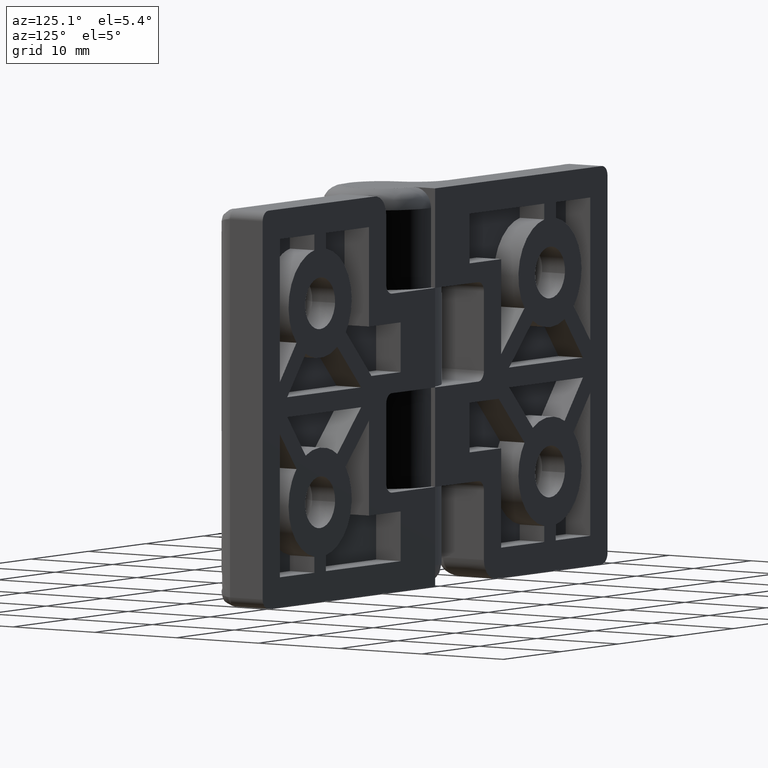
[diagram: clean part render]
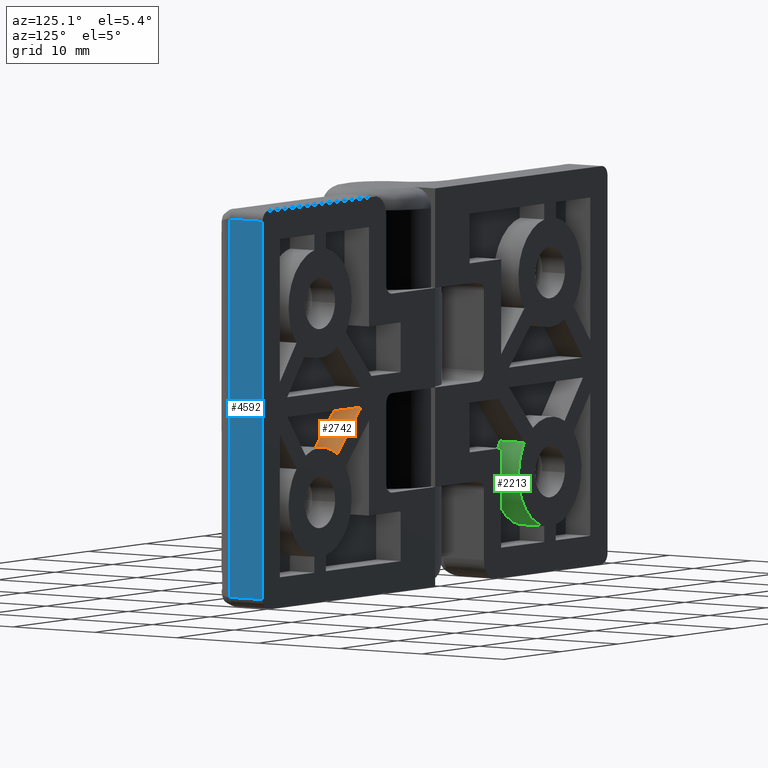
[diagram: same view with three faces highlighted in distinct colors, each labeled with its STEP entity id]
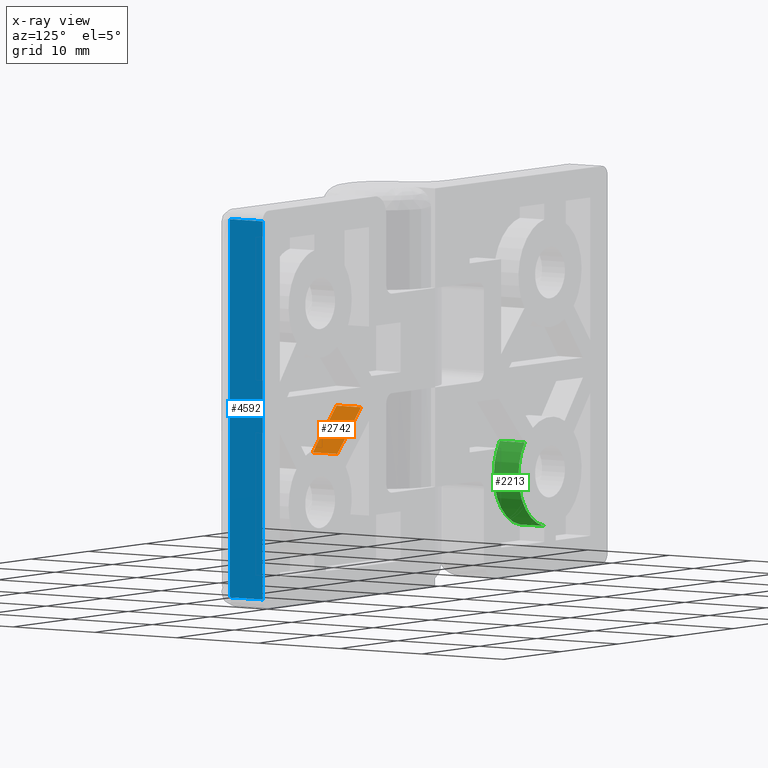
[diagram: x-ray of the same camera — body ghosted, the three highlighted faces saturated]
A machine part, auxiliary view with three faces highlighted in distinct colors.
The next image is the same camera in x-ray (body ghosted, the three faces saturated) — at least one of them is partly hidden behind the body in this view.
Their STEP definitions:

[orange] entity #2742 — the highlighted face is a freeform B-spline surface patch.
#2634=CARTESIAN_POINT('',(17.013528619988652,3.499999999999950,14.618548332252001));
#2635=VERTEX_POINT('',#2634);
#2649=CARTESIAN_POINT('',(12.875490933682400,3.499999999999950,19.000000000105601));
#2650=VERTEX_POINT('',#2649);
#2651=CARTESIAN_POINT('',(12.875490933682400,3.499999999999950,19.000000000105601));
#2652=CARTESIAN_POINT('',(17.013528619988652,3.499999999999950,14.618548332252001));
#2653=QUASI_UNIFORM_CURVE('',1,(#2651,#2652),.UNSPECIFIED.,.F.,.U.);
#2654=EDGE_CURVE('',#2650,#2635,#2653,.T.);
#2704=CARTESIAN_POINT('',(12.875490933682400,6.500000000000000,19.000000000105601));
#2705=VERTEX_POINT('',#2704);
#2713=CARTESIAN_POINT('',(12.875490933682400,3.499999999999950,19.000000000105601));
#2714=CARTESIAN_POINT('',(12.875490933682400,6.500000000000000,19.000000000105601));
#2715=QUASI_UNIFORM_CURVE('',1,(#2713,#2714),.UNSPECIFIED.,.F.,.U.);
#2716=EDGE_CURVE('',#2650,#2705,#2715,.T.);
#2721=CARTESIAN_POINT('',(12.668796036961600,3.350150005814530,19.218853420162919));
#2722=CARTESIAN_POINT('',(17.220223701694149,3.350150005814530,14.399694716328529));
#2723=CARTESIAN_POINT('',(12.668796036961600,6.649850074651692,19.218853420162919));
#2724=CARTESIAN_POINT('',(17.220223701694149,6.649850074651692,14.399694716328529));
#2725=B_SPLINE_SURFACE_WITH_KNOTS('',1,1,((#2721,#2723),(#2722,#2724)),.UNSPECIFIED.,.F.,.F.,.U.,(2,2),(2,2),(0.0,6.628709105099988),(0.0,3.299700068837162),.UNSPECIFIED.);
#2726=CARTESIAN_POINT('',(17.013528619988652,6.500000000000000,14.618548332252001));
#2727=VERTEX_POINT('',#2726);
#2728=CARTESIAN_POINT('',(12.875490933682400,6.500000000000000,19.000000000105601));
#2729=CARTESIAN_POINT('',(17.013528619988652,6.500000000000000,14.618548332252001));
#2730=QUASI_UNIFORM_CURVE('',1,(#2728,#2729),.UNSPECIFIED.,.F.,.U.);
#2731=EDGE_CURVE('',#2705,#2727,#2730,.T.);
#2732=ORIENTED_EDGE('',*,*,#2731,.F.);
#2733=ORIENTED_EDGE('',*,*,#2716,.F.);
#2734=ORIENTED_EDGE('',*,*,#2654,.T.);
#2735=CARTESIAN_POINT('',(17.013528619988652,3.499999999999950,14.618548332252001));
#2736=CARTESIAN_POINT('',(17.013528619988652,6.500000000000000,14.618548332252001));
#2737=QUASI_UNIFORM_CURVE('',1,(#2735,#2736),.UNSPECIFIED.,.F.,.U.);
#2738=EDGE_CURVE('',#2635,#2727,#2737,.T.);
#2739=ORIENTED_EDGE('',*,*,#2738,.T.);
#2740=EDGE_LOOP('',(#2732,#2733,#2734,#2739));
#2741=FACE_OUTER_BOUND('',#2740,.T.);
#2742=ADVANCED_FACE('',(#2741),#2725,.T.);

[blue] entity #4592 — the highlighted face is a freeform B-spline surface patch.
#3457=CARTESIAN_POINT('',(30.0,2.500000000000000,1.0));
#3458=VERTEX_POINT('',#3457);
#3503=CARTESIAN_POINT('',(30.0,2.500000000000000,39.0));
#3504=VERTEX_POINT('',#3503);
#3528=CARTESIAN_POINT('',(30.0,2.500000000000000,39.0));
#3529=CARTESIAN_POINT('',(30.0,2.500000000000000,1.0));
#3530=QUASI_UNIFORM_CURVE('',1,(#3528,#3529),.UNSPECIFIED.,.F.,.U.);
#3531=EDGE_CURVE('',#3504,#3458,#3530,.T.);
#3816=CARTESIAN_POINT('',(30.0,6.500000000000000,39.0));
#3817=VERTEX_POINT('',#3816);
#3818=CARTESIAN_POINT('',(30.0,6.500000000000000,39.0));
#3819=CARTESIAN_POINT('',(30.0,2.500000000000000,39.0));
#3820=QUASI_UNIFORM_CURVE('',1,(#3818,#3819),.UNSPECIFIED.,.F.,.U.);
#3821=EDGE_CURVE('',#3817,#3504,#3820,.T.);
#3853=CARTESIAN_POINT('',(30.0,6.500000000000000,1.0));
#3854=VERTEX_POINT('',#3853);
#3855=CARTESIAN_POINT('',(30.0,2.500000000000000,1.0));
#3856=CARTESIAN_POINT('',(30.0,6.500000000000000,1.0));
#3857=QUASI_UNIFORM_CURVE('',1,(#3855,#3856),.UNSPECIFIED.,.F.,.U.);
#3858=EDGE_CURVE('',#3458,#3854,#3857,.T.);
#4577=CARTESIAN_POINT('',(30.0,2.300200007752776,40.898099926348621));
#4578=CARTESIAN_POINT('',(30.0,2.300200007752776,-0.898100945588053));
#4579=CARTESIAN_POINT('',(30.0,6.699800099535585,40.898099926348621));
#4580=CARTESIAN_POINT('',(30.0,6.699800099535585,-0.898100945588053));
#4581=B_SPLINE_SURFACE_WITH_KNOTS('',1,1,((#4577,#4579),(#4578,#4580)),.UNSPECIFIED.,.F.,.F.,.U.,(2,2),(2,2),(0.0,41.796200871936684),(0.0,4.399600091782808),.UNSPECIFIED.);
#4582=ORIENTED_EDGE('',*,*,#3821,.T.);
#4583=ORIENTED_EDGE('',*,*,#3531,.T.);
#4584=ORIENTED_EDGE('',*,*,#3858,.T.);
#4585=CARTESIAN_POINT('',(30.0,6.500000000000000,39.0));
#4586=CARTESIAN_POINT('',(30.0,6.500000000000000,1.0));
#4587=QUASI_UNIFORM_CURVE('',1,(#4585,#4586),.UNSPECIFIED.,.F.,.U.);
#4588=EDGE_CURVE('',#3817,#3854,#4587,.T.);
#4589=ORIENTED_EDGE('',*,*,#4588,.F.);
#4590=EDGE_LOOP('',(#4582,#4583,#4584,#4589));
#4591=FACE_OUTER_BOUND('',#4590,.T.);
#4592=ADVANCED_FACE('',(#4591),#4581,.T.);

[green] entity #2213 — the highlighted face is a freeform B-spline surface patch.
#2055=CARTESIAN_POINT('',(19.0,3.499999999999950,35.408326913301551));
#2056=VERTEX_POINT('',#2055);
#2062=CARTESIAN_POINT('',(15.559502314888899,3.499999999999950,26.754698733886400));
#2063=VERTEX_POINT('',#2062);
#2064=CARTESIAN_POINT('',(19.0,3.499999999999950,35.408326913301543));
#2065=CARTESIAN_POINT('',(16.011818917020033,3.499999999999950,34.855812035606228));
#2066=CARTESIAN_POINT('',(14.889121999860089,3.499999999999950,32.031975902443833));
#2067=CARTESIAN_POINT('',(13.766425082700133,3.499999999999950,29.208139769281438));
#2068=CARTESIAN_POINT('',(15.559502314888899,3.499999999999950,26.754698733886400));
#2076=(BOUNDED_CURVE()B_SPLINE_CURVE(2,(#2064,#2065,#2066,#2067,#2068),.UNSPECIFIED.,.F.,.U.)B_SPLINE_CURVE_WITH_KNOTS((3,2,3),(0.0,0.500000000000000,1.0),.UNSPECIFIED.)CURVE()GEOMETRIC_REPRESENTATION_ITEM()RATIONAL_B_SPLINE_CURVE((1.0,0.875284775002280,1.0,0.875284775002280,1.0))REPRESENTATION_ITEM(''));
#2077=EDGE_CURVE('',#2056,#2063,#2076,.T.);
#2156=CARTESIAN_POINT('',(19.0,6.500000000000000,35.408326913301551));
#2157=VERTEX_POINT('',#2156);
#2163=CARTESIAN_POINT('',(19.0,3.499999999999950,35.408326913301551));
#2164=CARTESIAN_POINT('',(19.0,6.500000000000000,35.408326913301551));
#2165=QUASI_UNIFORM_CURVE('',1,(#2163,#2164),.UNSPECIFIED.,.F.,.U.);
#2166=EDGE_CURVE('',#2056,#2157,#2165,.T.);
#2173=CARTESIAN_POINT('',(19.047234033730639,3.424999999999948,35.416847516283099));
#2174=CARTESIAN_POINT('',(19.047234033730639,6.576875000000003,35.416847516283099));
#2175=CARTESIAN_POINT('',(9.851251782502970,3.424999999999947,33.799371873998112));
#2176=CARTESIAN_POINT('',(9.851251782502970,6.576875000000004,33.799371873998112));
#2177=CARTESIAN_POINT('',(15.724228518073120,3.424999999999948,26.540552322464158));
#2178=CARTESIAN_POINT('',(15.724228518073120,6.576875000000003,26.540552322464158));
#2186=(BOUNDED_SURFACE()B_SPLINE_SURFACE(1,2,((#2173,#2175,#2177),(#2174,#2176,#2178)),.UNSPECIFIED.,.F.,.F.,.U.)B_SPLINE_SURFACE_WITH_KNOTS((2,2),(3,3),(0.0,3.151875000000055),(0.0,12.574035922034900),.UNSPECIFIED.)GEOMETRIC_REPRESENTATION_ITEM()RATIONAL_B_SPLINE_SURFACE(((1.0,0.507538362960704,1.0),(1.0,0.507538362960704,1.0)))REPRESENTATION_ITEM('')SURFACE());
#2187=CARTESIAN_POINT('',(15.559502314888899,6.500000000000000,26.754698733886400));
#2188=VERTEX_POINT('',#2187);
#2189=CARTESIAN_POINT('',(19.0,6.500000000000000,35.408326913301543));
#2190=CARTESIAN_POINT('',(16.011818917020033,6.500000000000000,34.855812035606228));
#2191=CARTESIAN_POINT('',(14.889121999860089,6.500000000000000,32.031975902443833));
#2192=CARTESIAN_POINT('',(13.766425082700133,6.500000000000000,29.208139769281438));
#2193=CARTESIAN_POINT('',(15.559502314888899,6.500000000000000,26.754698733886400));
#2201=(BOUNDED_CURVE()B_SPLINE_CURVE(2,(#2189,#2190,#2191,#2192,#2193),.UNSPECIFIED.,.F.,.U.)B_SPLINE_CURVE_WITH_KNOTS((3,2,3),(0.0,0.500000000000000,1.0),.UNSPECIFIED.)CURVE()GEOMETRIC_REPRESENTATION_ITEM()RATIONAL_B_SPLINE_CURVE((1.0,0.875284775002280,1.0,0.875284775002280,1.0))REPRESENTATION_ITEM(''));
#2202=EDGE_CURVE('',#2157,#2188,#2201,.T.);
#2203=ORIENTED_EDGE('',*,*,#2202,.T.);
#2204=CARTESIAN_POINT('',(15.559502314888899,3.499999999999950,26.754698733886400));
#2205=CARTESIAN_POINT('',(15.559502314888899,6.500000000000000,26.754698733886400));
#2206=QUASI_UNIFORM_CURVE('',1,(#2204,#2205),.UNSPECIFIED.,.F.,.U.);
#2207=EDGE_CURVE('',#2063,#2188,#2206,.T.);
#2208=ORIENTED_EDGE('',*,*,#2207,.F.);
#2209=ORIENTED_EDGE('',*,*,#2077,.F.);
#2210=ORIENTED_EDGE('',*,*,#2166,.T.);
#2211=EDGE_LOOP('',(#2203,#2208,#2209,#2210));
#2212=FACE_OUTER_BOUND('',#2211,.T.);
#2213=ADVANCED_FACE('',(#2212),#2186,.T.);